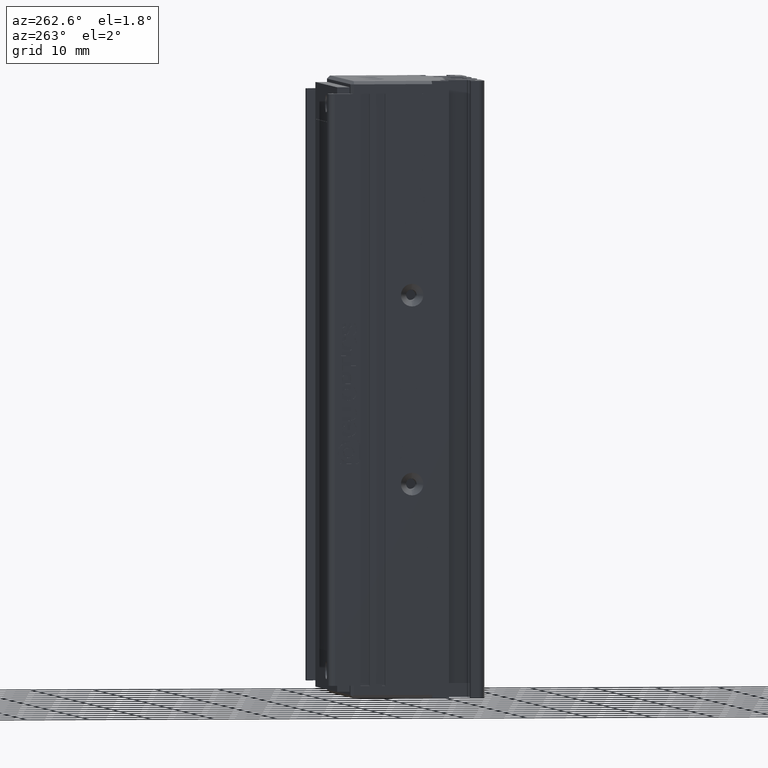
[diagram: clean part render]
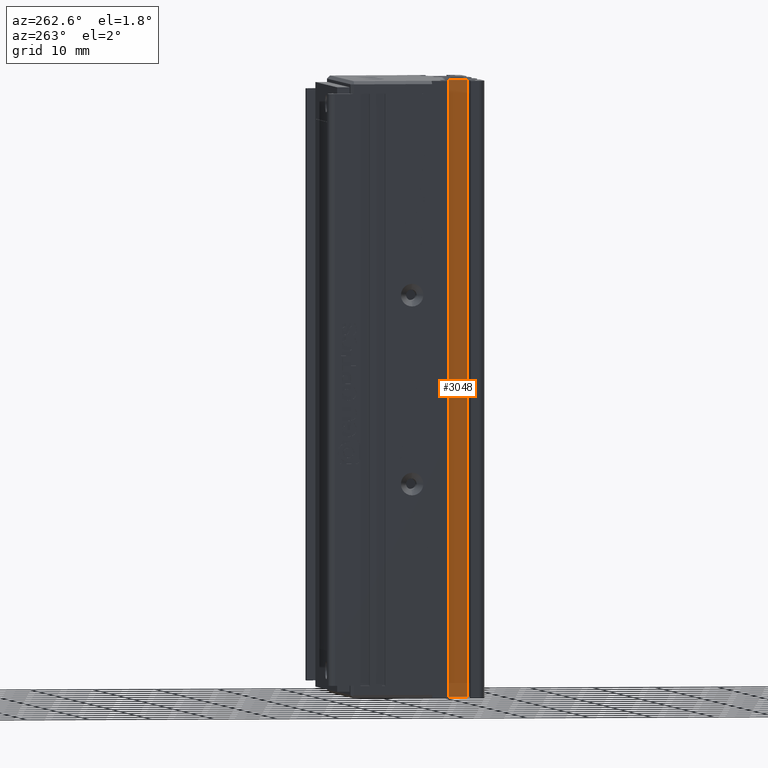
[diagram: same view with one face highlighted and labeled with its STEP entity id]
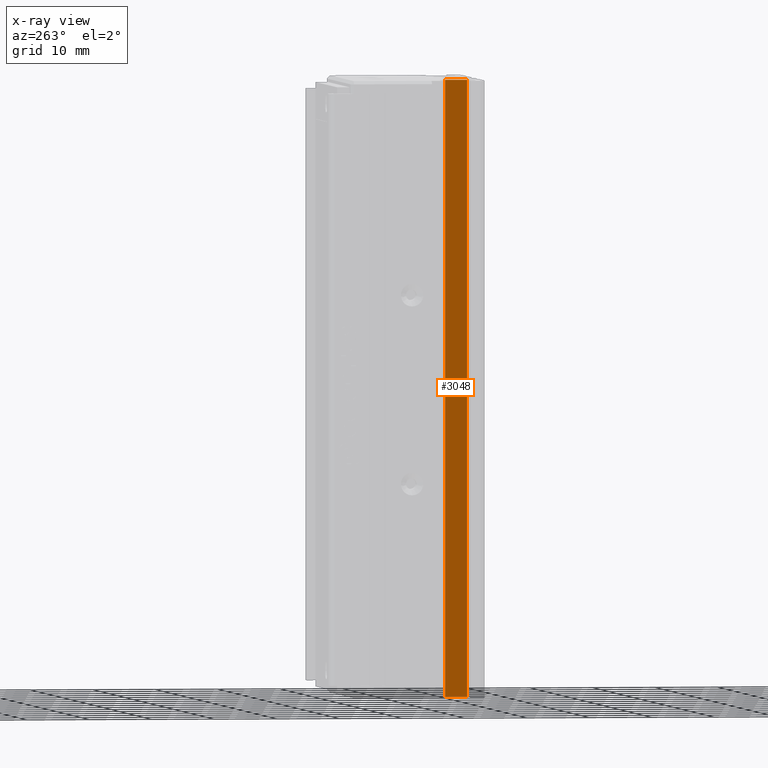
[diagram: x-ray of the same camera — body ghosted, the highlighted face saturated]
A machine part, auxiliary view. The second image highlights one B-rep face of the part: STEP entity #3048.
The next image is the same camera in x-ray: the body ghosted, the highlighted face saturated — about 0% of this face is hidden behind the body in this view.
In plain terms, the highlighted planar face has unit normal (1, 0, -0).
Its self-contained STEP definition (entity closure, byte-faithful):
#130 = LINE ( 'NONE', #3281, #24193 ) ;
#745 = FACE_OUTER_BOUND ( 'NONE', #20331, .T. ) ;
#1825 = PLANE ( 'NONE',  #2238 ) ;
#1932 = DIRECTION ( 'NONE',  ( -0.0000000000000000000, 0.0000000000000000000, -1.000000000000000000 ) ) ;
#2238 = AXIS2_PLACEMENT_3D ( 'NONE', #30757, #16246, #1932 ) ;
#2622 = ORIENTED_EDGE ( 'NONE', *, *, #28658, .F. ) ;
#3048 = ADVANCED_FACE ( 'NONE', ( #745 ), #1825, .F. ) ;
#3281 = CARTESIAN_POINT ( 'NONE',  ( 30.72537974683543300, 16.49594479660387200, -66.00000000000000000 ) ) ;
#3520 = ORIENTED_EDGE ( 'NONE', *, *, #17726, .F. ) ;
#3900 = VERTEX_POINT ( 'NONE', #11284 ) ;
#4613 = VERTEX_POINT ( 'NONE', #26004 ) ;
#5914 = VECTOR ( 'NONE', #19292, 1000.000000000000000 ) ;
#7765 = CARTESIAN_POINT ( 'NONE',  ( 30.72537974683543300, 12.99594479660387100, -66.00000000000000000 ) ) ;
#9507 = CARTESIAN_POINT ( 'NONE',  ( 30.72537974683543300, 7.083797468354437600, -66.00000000000000000 ) ) ;
#11284 = CARTESIAN_POINT ( 'NONE',  ( 30.72537974683543300, 16.49594479660387200, -66.00000000000000000 ) ) ;
#13164 = CARTESIAN_POINT ( 'NONE',  ( 30.72537974683543300, 16.49594479660387200, -164.0000000000000000 ) ) ;
#16246 = DIRECTION ( 'NONE',  ( 1.000000000000000000, 0.0000000000000000000, -0.0000000000000000000 ) ) ;
#16683 = VECTOR ( 'NONE', #21025, 1000.000000000000000 ) ;
#17051 = EDGE_CURVE ( 'NONE', #18422, #30255, #29560, .T. ) ;
#17726 = EDGE_CURVE ( 'NONE', #18422, #3900, #130, .T. ) ;
#18422 = VERTEX_POINT ( 'NONE', #13164 ) ;
#18576 = CARTESIAN_POINT ( 'NONE',  ( 30.72537974683543300, 7.083797468354437600, -164.0000000000000000 ) ) ;
#18674 = LINE ( 'NONE', #9507, #5914 ) ;
#19292 = DIRECTION ( 'NONE',  ( -0.0000000000000000000, -1.000000000000000000, 0.0000000000000000000 ) ) ;
#19726 = CARTESIAN_POINT ( 'NONE',  ( 30.72537974683543300, 12.99594479660387100, -164.0000000000000000 ) ) ;
#20331 = EDGE_LOOP ( 'NONE', ( #2622, #25265, #3520, #30941 ) ) ;
#21025 = DIRECTION ( 'NONE',  ( -0.0000000000000000000, -1.000000000000000000, 0.0000000000000000000 ) ) ;
#22510 = DIRECTION ( 'NONE',  ( 0.0000000000000000000, -0.0000000000000000000, 1.000000000000000000 ) ) ;
#22546 = LINE ( 'NONE', #7765, #28233 ) ;
#23303 = EDGE_CURVE ( 'NONE', #3900, #4613, #18674, .T. ) ;
#24193 = VECTOR ( 'NONE', #22510, 1000.000000000000000 ) ;
#25265 = ORIENTED_EDGE ( 'NONE', *, *, #23303, .F. ) ;
#26004 = CARTESIAN_POINT ( 'NONE',  ( 30.72537974683543300, 12.99594479660387100, -66.00000000000000000 ) ) ;
#27067 = DIRECTION ( 'NONE',  ( -0.0000000000000000000, 0.0000000000000000000, -1.000000000000000000 ) ) ;
#28233 = VECTOR ( 'NONE', #27067, 1000.000000000000000 ) ;
#28658 = EDGE_CURVE ( 'NONE', #4613, #30255, #22546, .T. ) ;
#29560 = LINE ( 'NONE', #18576, #16683 ) ;
#30255 = VERTEX_POINT ( 'NONE', #19726 ) ;
#30757 = CARTESIAN_POINT ( 'NONE',  ( 30.72537974683543300, 7.083797468354437600, -66.00000000000000000 ) ) ;
#30941 = ORIENTED_EDGE ( 'NONE', *, *, #17051, .T. ) ;